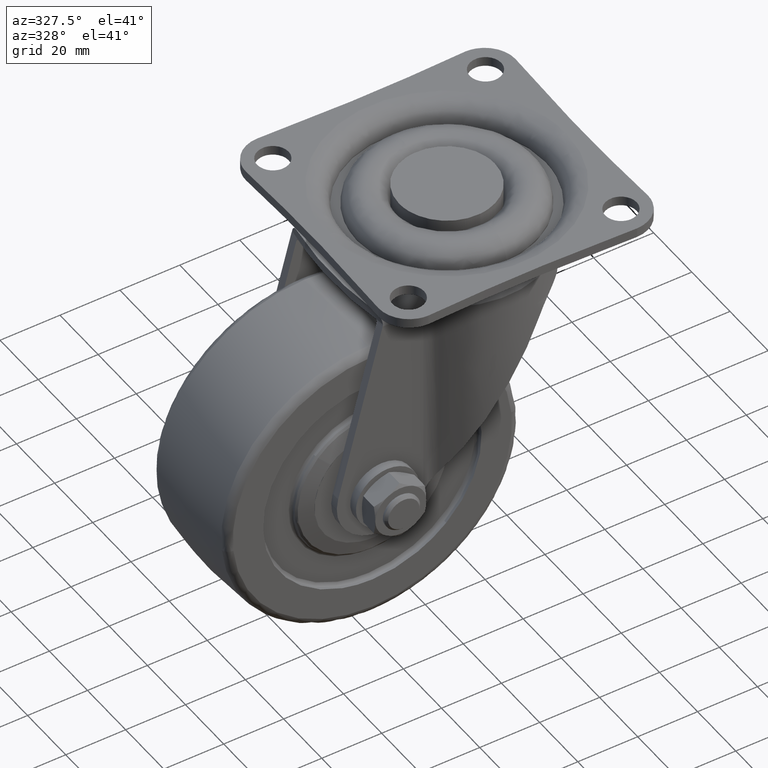
[diagram: clean part render]
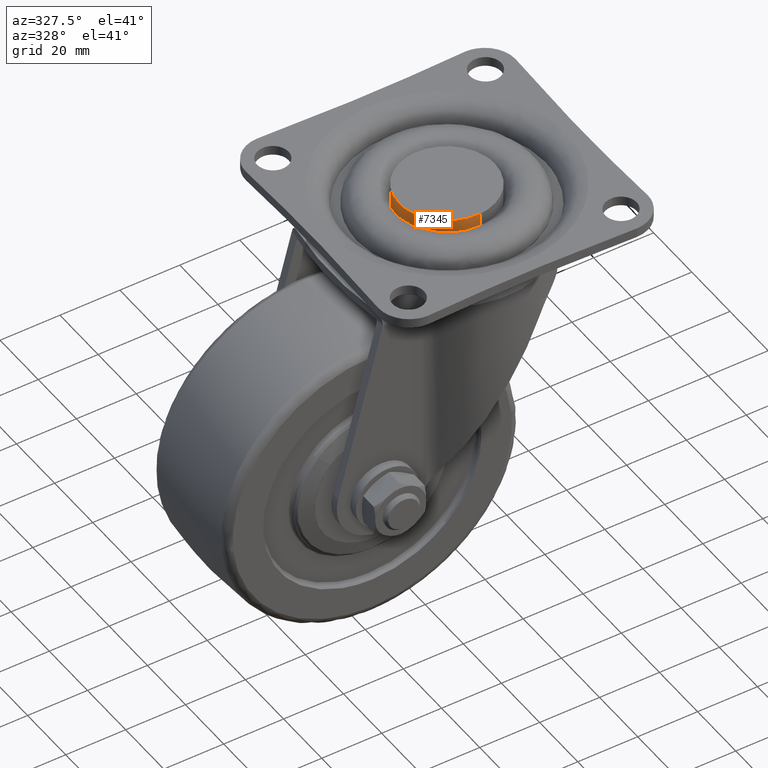
[diagram: same view with one face highlighted and labeled with its STEP entity id]
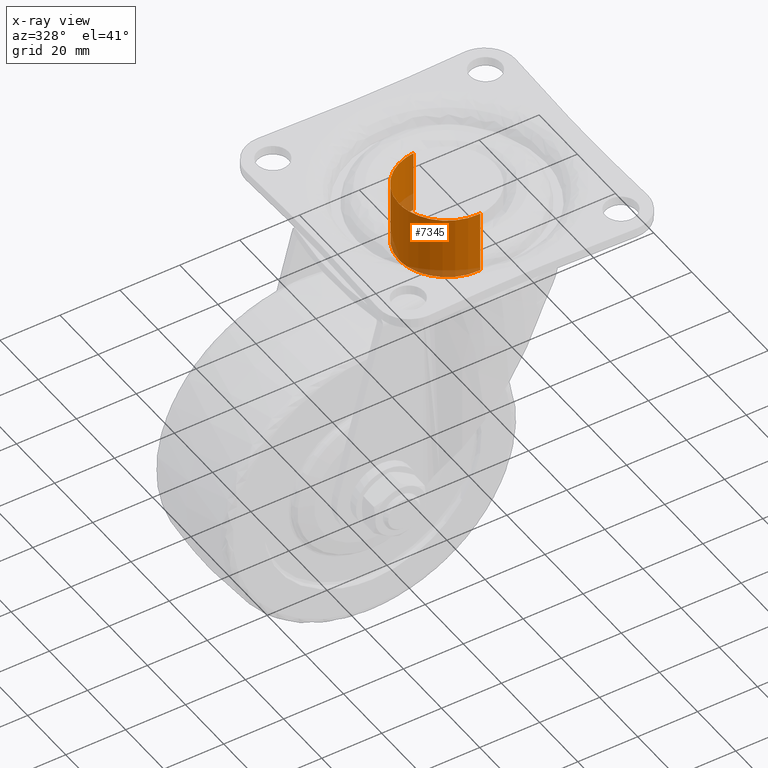
[diagram: x-ray of the same camera — body ghosted, the highlighted face saturated]
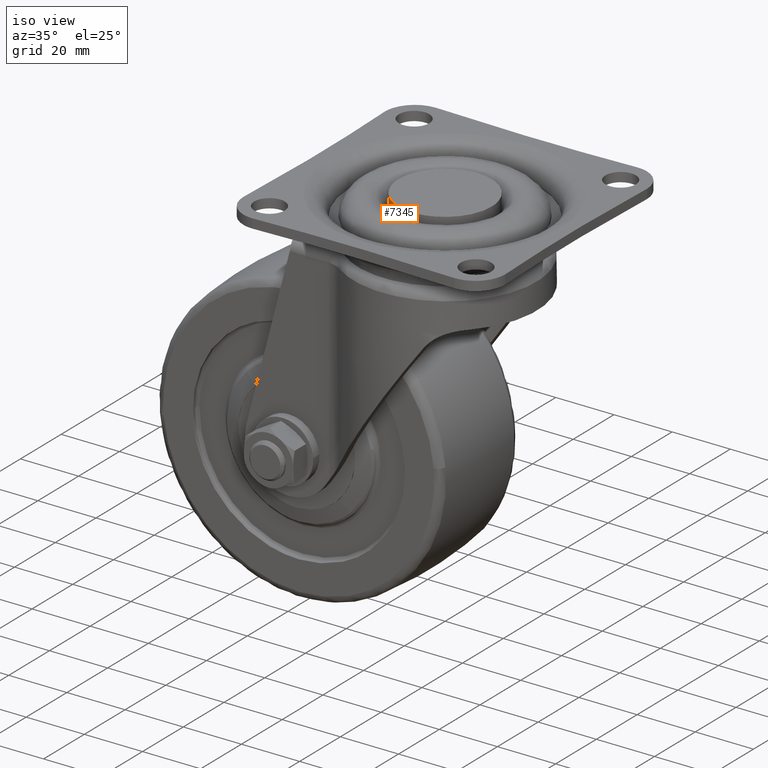
[diagram: same view with one face highlighted and labeled with its STEP entity id]
A machine part, auxiliary view. The second image highlights one B-rep face of the part: STEP entity #7345.
The next image is the same camera in x-ray: the body ghosted, the highlighted face saturated — about 10% of this face is hidden behind the body in this view.
A second angle (iso view) of the same face is appended — the face is thin or edge-on in the first view.
In plain terms, the highlighted face is a freeform B-spline surface patch.
Its self-contained STEP definition (entity closure, byte-faithful):
#7157=CARTESIAN_POINT('',(0.976763727612640,-15.970157564039660,-4.996004E-016));
#7158=VERTEX_POINT('',#7157);
#7159=CARTESIAN_POINT('',(-16.0,0.0,0.0));
#7160=VERTEX_POINT('',#7159);
#7161=CARTESIAN_POINT('',(0.976763727612640,-15.970157564039653,-4.996004E-016));
#7162=CARTESIAN_POINT('',(0.488837742212866,-15.999999999994857,-4.924209E-016));
#7163=CARTESIAN_POINT('',(-3.108036E-013,-15.999999999994939,-4.847889E-016));
#7164=CARTESIAN_POINT('',(-16.000000000000153,-15.999999999997550,-2.349887E-016));
#7165=CARTESIAN_POINT('',(-16.0,0.0,0.0));
#7173=(BOUNDED_CURVE()B_SPLINE_CURVE(2,(#7161,#7162,#7163,#7164,#7165),.UNSPECIFIED.,.F.,.U.)B_SPLINE_CURVE_WITH_KNOTS((3,2,3),(0.739333101671224,0.750000000000000,1.0),.UNSPECIFIED.)CURVE()GEOMETRIC_REPRESENTATION_ITEM()RATIONAL_B_SPLINE_CURVE((0.976072340496821,0.987502951254916,1.0,0.707106781186548,1.0))REPRESENTATION_ITEM(''));
#7174=EDGE_CURVE('',#7158,#7160,#7173,.T.);
#7191=CARTESIAN_POINT('',(-0.976763727612640,15.970157564039660,-4.996004E-016));
#7192=VERTEX_POINT('',#7191);
#7208=CARTESIAN_POINT('',(-16.0,0.0,0.0));
#7209=CARTESIAN_POINT('',(-15.999999999999844,15.051309255665879,-2.498002E-016));
#7210=CARTESIAN_POINT('',(-0.976763727612640,15.970157564039653,-4.996004E-016));
#7218=(BOUNDED_CURVE()B_SPLINE_CURVE(2,(#7208,#7209,#7210),.UNSPECIFIED.,.F.,.U.)B_SPLINE_CURVE_WITH_KNOTS((3,3),(0.0,0.239333101671224),.UNSPECIFIED.)CURVE()GEOMETRIC_REPRESENTATION_ITEM()RATIONAL_B_SPLINE_CURVE((1.0,0.719603829931631,0.976072340496821))REPRESENTATION_ITEM(''));
#7219=EDGE_CURVE('',#7160,#7192,#7218,.T.);
#7242=CARTESIAN_POINT('',(-0.976763566134229,15.970157573915840,-21.099964000000138));
#7243=VERTEX_POINT('',#7242);
#7261=CARTESIAN_POINT('',(-0.976763727612640,15.970157564039660,-4.996004E-016));
#7262=CARTESIAN_POINT('',(-0.976763566134229,15.970157573915840,-21.099964000000138));
#7263=QUASI_UNIFORM_CURVE('',1,(#7261,#7262),.UNSPECIFIED.,.F.,.U.);
#7264=EDGE_CURVE('',#7192,#7243,#7263,.T.);
#7268=CARTESIAN_POINT('',(0.976763566134228,-15.970157573915831,-21.099964000000138));
#7269=VERTEX_POINT('',#7268);
#7270=CARTESIAN_POINT('',(0.976763727612640,-15.970157564039660,-4.996004E-016));
#7271=CARTESIAN_POINT('',(0.976763566134228,-15.970157573915831,-21.099964000000138));
#7272=QUASI_UNIFORM_CURVE('',1,(#7270,#7271),.UNSPECIFIED.,.F.,.U.);
#7273=EDGE_CURVE('',#7158,#7269,#7272,.T.);
#7291=CARTESIAN_POINT('',(0.976776632557712,-15.970156774749871,0.527499100000002));
#7292=CARTESIAN_POINT('',(-14.993380142192160,-16.946933407307572,0.527499100000002));
#7293=CARTESIAN_POINT('',(-15.970156774749871,-0.976776632557712,0.527499100000002));
#7294=CARTESIAN_POINT('',(-16.946933407307572,14.993380142192160,0.527499100000002));
#7295=CARTESIAN_POINT('',(-0.976776632557712,15.970156774749871,0.527499100000002));
#7296=CARTESIAN_POINT('',(0.976776632557712,-15.970156774749871,-21.640650577500050));
#7297=CARTESIAN_POINT('',(-14.993380142192160,-16.946933407307572,-21.640650577500047));
#7298=CARTESIAN_POINT('',(-15.970156774749871,-0.976776632557712,-21.640650577500050));
#7299=CARTESIAN_POINT('',(-16.946933407307572,14.993380142192160,-21.640650577500047));
#7300=CARTESIAN_POINT('',(-0.976776632557712,15.970156774749871,-21.640650577500050));
#7308=(BOUNDED_SURFACE()B_SPLINE_SURFACE(2,1,((#7291,#7296),(#7292,#7297),(#7293,#7298),(#7294,#7299),(#7295,#7300)),.UNSPECIFIED.,.F.,.F.,.U.)B_SPLINE_SURFACE_WITH_KNOTS((3,2,3),(2,2),(0.0,26.509667991878072,53.019335983756143),(0.0,22.168149677500050),.UNSPECIFIED.)GEOMETRIC_REPRESENTATION_ITEM()RATIONAL_B_SPLINE_SURFACE(((1.0,1.0),(0.707106781186548,0.707106781186548),(1.0,1.0),(0.707106781186548,0.707106781186548),(1.0,1.0)))REPRESENTATION_ITEM('')SURFACE());
#7309=CARTESIAN_POINT('',(-16.0,0.0,-21.099964000000050));
#7310=VERTEX_POINT('',#7309);
#7311=CARTESIAN_POINT('',(-16.0,0.0,-21.099964000000050));
#7312=CARTESIAN_POINT('',(-15.999999999999833,15.051309408137895,-21.099964000000096));
#7313=CARTESIAN_POINT('',(-0.976763566134229,15.970157573915843,-21.099964000000142));
#7321=(BOUNDED_CURVE()B_SPLINE_CURVE(2,(#7311,#7312,#7313),.UNSPECIFIED.,.F.,.U.)B_SPLINE_CURVE_WITH_KNOTS((3,3),(0.0,0.239333103415890),.UNSPECIFIED.)CURVE()GEOMETRIC_REPRESENTATION_ITEM()RATIONAL_B_SPLINE_CURVE((1.0,0.719603827887628,0.976072344235976))REPRESENTATION_ITEM(''));
#7322=EDGE_CURVE('',#7310,#7243,#7321,.T.);
#7323=ORIENTED_EDGE('',*,*,#7322,.F.);
#7324=CARTESIAN_POINT('',(0.976763566134228,-15.970157573915831,-21.099964000000135));
#7325=CARTESIAN_POINT('',(0.488837661247276,-15.999999999994735,-21.099964000000135));
#7326=CARTESIAN_POINT('',(-3.199607E-013,-15.999999999994809,-21.099964000000131));
#7327=CARTESIAN_POINT('',(-16.000000000000153,-15.999999999997481,-21.099964000000082));
#7328=CARTESIAN_POINT('',(-16.0,0.0,-21.099964000000050));
#7336=(BOUNDED_CURVE()B_SPLINE_CURVE(2,(#7324,#7325,#7326,#7327,#7328),.UNSPECIFIED.,.F.,.U.)B_SPLINE_CURVE_WITH_KNOTS((3,2,3),(0.739333103415890,0.750000000000000,1.0),.UNSPECIFIED.)CURVE()GEOMETRIC_REPRESENTATION_ITEM()RATIONAL_B_SPLINE_CURVE((0.976072344235976,0.987502953298919,1.0,0.707106781186548,1.0))REPRESENTATION_ITEM(''));
#7337=EDGE_CURVE('',#7269,#7310,#7336,.T.);
#7338=ORIENTED_EDGE('',*,*,#7337,.F.);
#7339=ORIENTED_EDGE('',*,*,#7273,.F.);
#7340=ORIENTED_EDGE('',*,*,#7174,.T.);
#7341=ORIENTED_EDGE('',*,*,#7219,.T.);
#7342=ORIENTED_EDGE('',*,*,#7264,.T.);
#7343=EDGE_LOOP('',(#7323,#7338,#7339,#7340,#7341,#7342));
#7344=FACE_OUTER_BOUND('',#7343,.T.);
#7345=ADVANCED_FACE('',(#7344),#7308,.T.);